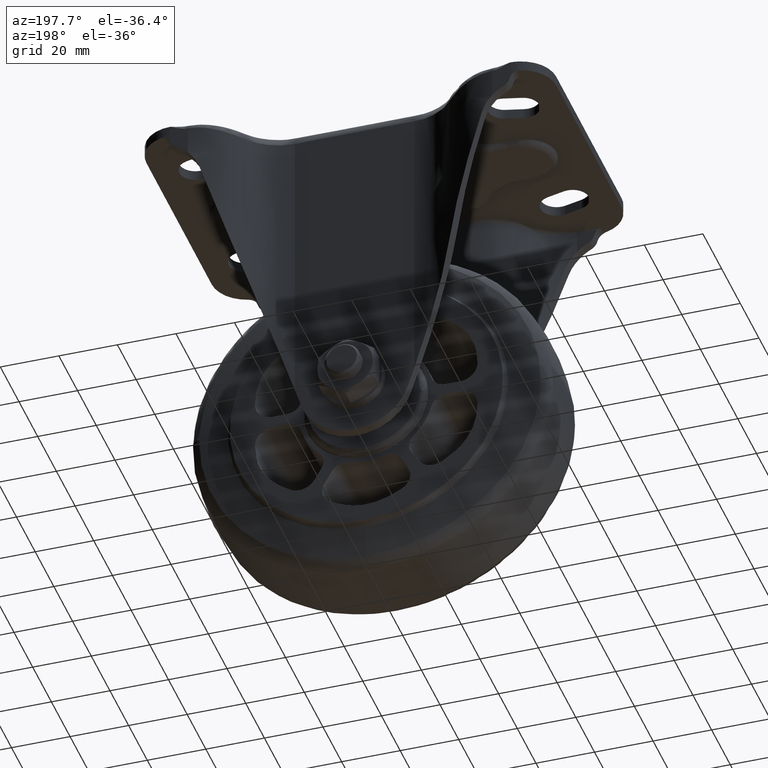
[diagram: clean part render]
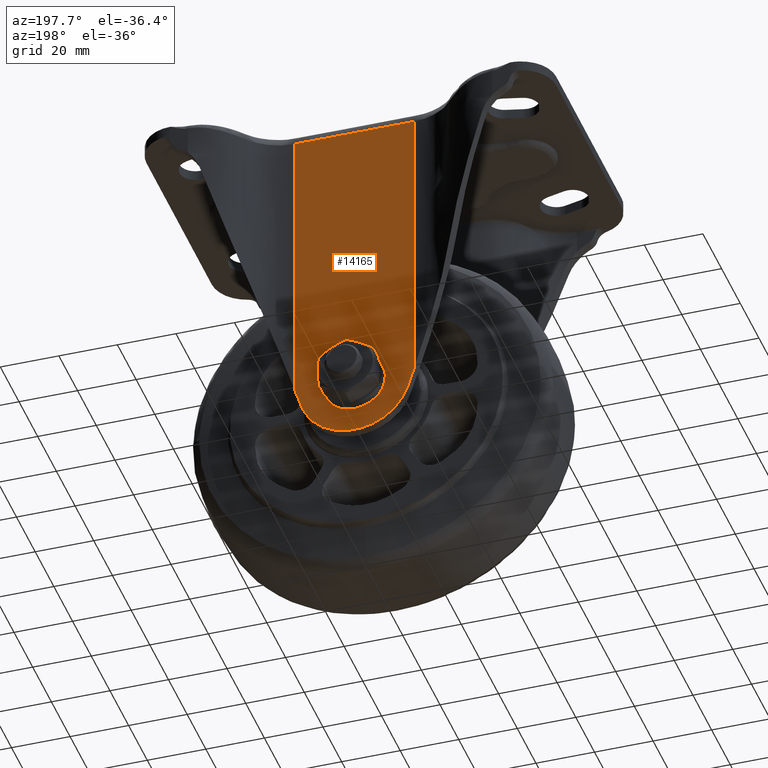
[diagram: same view with one face highlighted and labeled with its STEP entity id]
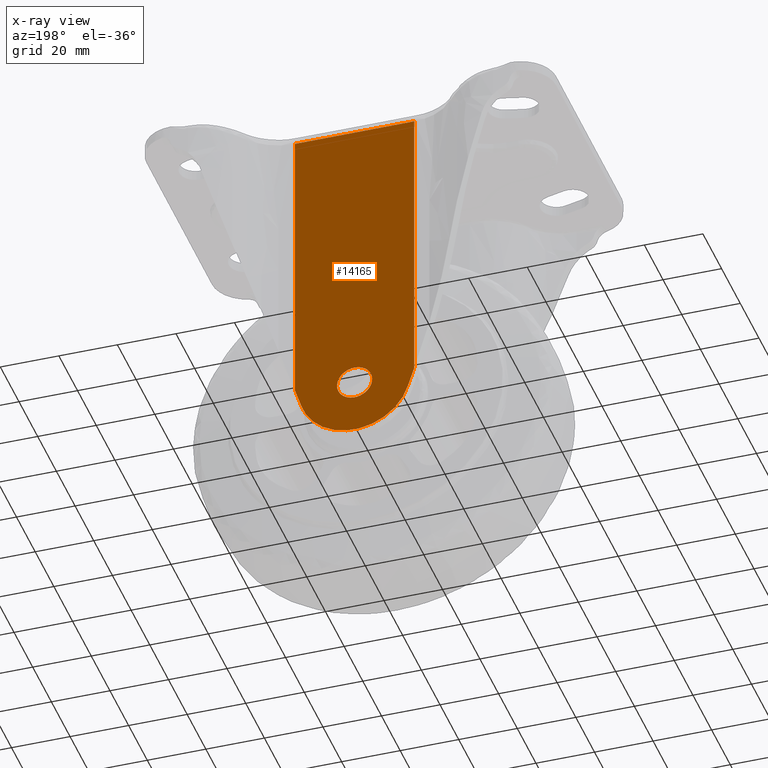
[diagram: x-ray of the same camera — body ghosted, the highlighted face saturated]
A machine part, auxiliary view. The second image highlights one B-rep face of the part: STEP entity #14165.
The next image is the same camera in x-ray: the body ghosted, the highlighted face saturated — about 0% of this face is hidden behind the body in this view.
In plain terms, the highlighted face is a freeform B-spline surface patch.
Its self-contained STEP definition (entity closure, byte-faithful):
#7421=CARTESIAN_POINT('',(5.999771538378207,31.500000000000000,0.052359213773397));
#7422=VERTEX_POINT('',#7421);
#7428=CARTESIAN_POINT('',(1.421085E-014,31.500000000000000,-6.0));
#7429=VERTEX_POINT('',#7428);
#7430=CARTESIAN_POINT('',(1.421085E-014,31.500000000000000,-6.0));
#7431=CARTESIAN_POINT('',(6.000000000000014,31.500000000000000,-6.0));
#7432=CARTESIAN_POINT('',(6.000000000000014,31.500000000000000,0.0));
#7433=CARTESIAN_POINT('',(6.000000000000015,31.500000000000007,0.026180105707424));
#7434=CARTESIAN_POINT('',(5.999771538378207,31.499999999999996,0.052359213773397));
#7442=(BOUNDED_CURVE()B_SPLINE_CURVE(2,(#7430,#7431,#7432,#7433,#7434),.UNSPECIFIED.,.F.,.U.)B_SPLINE_CURVE_WITH_KNOTS((3,2,3),(0.500000000000000,0.750000000000000,0.751539894380972),.UNSPECIFIED.)CURVE()GEOMETRIC_REPRESENTATION_ITEM()RATIONAL_B_SPLINE_CURVE((1.0,0.707106781186548,1.0,0.998195901512497,0.996414027993984))REPRESENTATION_ITEM(''));
#7443=EDGE_CURVE('',#7429,#7422,#7442,.T.);
#7445=CARTESIAN_POINT('',(-5.953597269083722,31.500000000000000,-0.744768123350259));
#7446=VERTEX_POINT('',#7445);
#7447=CARTESIAN_POINT('',(-5.953597269083722,31.499999999999996,-0.744768123350259));
#7448=CARTESIAN_POINT('',(-5.296191402106525,31.500000000000007,-6.000000000000002));
#7449=CARTESIAN_POINT('',(1.421085E-014,31.500000000000000,-6.0));
#7457=(BOUNDED_CURVE()B_SPLINE_CURVE(2,(#7447,#7448,#7449),.UNSPECIFIED.,.F.,.U.)B_SPLINE_CURVE_WITH_KNOTS((3,3),(0.271473935251942,0.500000000000000),.UNSPECIFIED.)CURVE()GEOMETRIC_REPRESENTATION_ITEM()RATIONAL_B_SPLINE_CURVE((0.954005418085258,0.732265061252680,1.0))REPRESENTATION_ITEM(''));
#7458=EDGE_CURVE('',#7446,#7429,#7457,.T.);
#7508=CARTESIAN_POINT('',(1.421085E-014,31.500000000000000,6.0));
#7509=VERTEX_POINT('',#7508);
#7510=CARTESIAN_POINT('',(1.421085E-014,31.500000000000000,6.0));
#7511=CARTESIAN_POINT('',(-5.999999999999985,31.500000000000000,6.0));
#7512=CARTESIAN_POINT('',(-5.999999999999987,31.500000000000000,0.0));
#7513=CARTESIAN_POINT('',(-5.999999999999987,31.500000000000000,-0.373829677370134));
#7514=CARTESIAN_POINT('',(-5.953597269083722,31.499999999999996,-0.744768123350259));
#7522=(BOUNDED_CURVE()B_SPLINE_CURVE(2,(#7510,#7511,#7512,#7513,#7514),.UNSPECIFIED.,.F.,.U.)B_SPLINE_CURVE_WITH_KNOTS((3,2,3),(0.0,0.250000000000000,0.271473935251942),.UNSPECIFIED.)CURVE()GEOMETRIC_REPRESENTATION_ITEM()RATIONAL_B_SPLINE_CURVE((1.0,0.707106781186548,1.0,0.974841719933868,0.954005418085258))REPRESENTATION_ITEM(''));
#7523=EDGE_CURVE('',#7509,#7446,#7522,.T.);
#7525=CARTESIAN_POINT('',(5.999771538378207,31.500000000000004,0.052359213773397));
#7526=CARTESIAN_POINT('',(5.947867262017067,31.500000000000004,6.000000000000001));
#7527=CARTESIAN_POINT('',(1.421085E-014,31.500000000000000,6.0));
#7535=(BOUNDED_CURVE()B_SPLINE_CURVE(2,(#7525,#7526,#7527),.UNSPECIFIED.,.F.,.U.)B_SPLINE_CURVE_WITH_KNOTS((3,3),(0.751539894380971,1.0),.UNSPECIFIED.)CURVE()GEOMETRIC_REPRESENTATION_ITEM()RATIONAL_B_SPLINE_CURVE((0.996414027993986,0.708910879674049,1.0))REPRESENTATION_ITEM(''));
#7536=EDGE_CURVE('',#7422,#7509,#7535,.T.);
#10448=CARTESIAN_POINT('',(20.381172492475351,31.500000000000000,101.0));
#10449=VERTEX_POINT('',#10448);
#10514=CARTESIAN_POINT('',(-20.381172492475201,31.500000000000000,101.0));
#10515=VERTEX_POINT('',#10514);
#10539=CARTESIAN_POINT('',(-20.381172492475201,31.500000000000000,101.0));
#10540=CARTESIAN_POINT('',(-6.793724164158340,31.500000000000000,101.0));
#10541=CARTESIAN_POINT('',(6.793724164158500,31.500000000000000,101.0));
#10542=CARTESIAN_POINT('',(20.381172492475351,31.500000000000000,101.0));
#10543=QUASI_UNIFORM_CURVE('',3,(#10539,#10540,#10541,#10542),.UNSPECIFIED.,.F.,.U.);
#10544=EDGE_CURVE('',#10515,#10449,#10543,.T.);
#13154=CARTESIAN_POINT('',(-18.235149932094149,31.500000000000000,-5.336600692767211));
#13155=VERTEX_POINT('',#13154);
#13156=CARTESIAN_POINT('',(18.235148162409502,31.500000000000000,-5.336606739771921));
#13157=VERTEX_POINT('',#13156);
#13158=CARTESIAN_POINT('',(-18.235149932094181,31.500000000000000,-5.336600692767220));
#13159=CARTESIAN_POINT('',(-14.236493826549678,31.500000000000000,-18.999997639500087));
#13160=CARTESIAN_POINT('',(-0.000003150319382,31.500000000000000,-18.999999999999741));
#13161=CARTESIAN_POINT('',(14.236487525910904,31.500000000000000,-19.000002360499391));
#13162=CARTESIAN_POINT('',(18.235148162409502,31.500000000000000,-5.336606739771921));
#13170=(BOUNDED_CURVE()B_SPLINE_CURVE(2,(#13158,#13159,#13160,#13161,#13162),.UNSPECIFIED.,.F.,.U.)B_SPLINE_CURVE_WITH_KNOTS((3,2,3),(0.0,0.500000000000000,1.0),.UNSPECIFIED.)CURVE()GEOMETRIC_REPRESENTATION_ITEM()RATIONAL_B_SPLINE_CURVE((1.0,0.800273040844081,1.0,0.800273040844081,1.0))REPRESENTATION_ITEM(''));
#13171=EDGE_CURVE('',#13155,#13157,#13170,.T.);
#13212=CARTESIAN_POINT('',(-20.381172492475201,31.500000000000000,1.315067284115456));
#13213=VERTEX_POINT('',#13212);
#13227=CARTESIAN_POINT('',(-18.235149932094149,31.500000000000000,-5.336600692767211));
#13228=CARTESIAN_POINT('',(-20.381172492475201,31.500000000000000,1.315067284115456));
#13229=QUASI_UNIFORM_CURVE('',1,(#13227,#13228),.UNSPECIFIED.,.F.,.U.);
#13230=EDGE_CURVE('',#13155,#13213,#13229,.T.);
#13290=CARTESIAN_POINT('',(20.381172492475351,31.500000000000000,1.315066247322582));
#13291=VERTEX_POINT('',#13290);
#13365=CARTESIAN_POINT('',(20.381172492475351,31.500000000000000,1.315066247322582));
#13366=CARTESIAN_POINT('',(18.235148162409502,31.500000000000000,-5.336606739771921));
#13367=QUASI_UNIFORM_CURVE('',1,(#13365,#13366),.UNSPECIFIED.,.F.,.U.);
#13368=EDGE_CURVE('',#13291,#13157,#13367,.T.);
#14131=CARTESIAN_POINT('',(20.381172492475351,31.500000000000000,1.315066247322582));
#14132=CARTESIAN_POINT('',(20.381172492475351,31.500000000000000,101.0));
#14133=QUASI_UNIFORM_CURVE('',1,(#14131,#14132),.UNSPECIFIED.,.F.,.U.);
#14134=EDGE_CURVE('',#13291,#10449,#14133,.T.);
#14142=CARTESIAN_POINT('',(-22.417251162820410,31.500000000000000,106.993999767416700));
#14143=CARTESIAN_POINT('',(-22.417251162820410,31.500000000000000,-24.994002986067471));
#14144=CARTESIAN_POINT('',(22.417252620595619,31.500000000000000,106.993999767416700));
#14145=CARTESIAN_POINT('',(22.417252620595619,31.500000000000000,-24.994002986067471));
#14146=B_SPLINE_SURFACE_WITH_KNOTS('',1,1,((#14142,#14144),(#14143,#14145)),.UNSPECIFIED.,.F.,.F.,.U.,(2,2),(2,2),(0.0,131.988002753484210),(0.0,44.834503783416032),.UNSPECIFIED.);
#14147=CARTESIAN_POINT('',(-20.381172492475201,31.500000000000000,1.315067284115456));
#14148=CARTESIAN_POINT('',(-20.381172492475201,31.500000000000000,101.0));
#14149=QUASI_UNIFORM_CURVE('',1,(#14147,#14148),.UNSPECIFIED.,.F.,.U.);
#14150=EDGE_CURVE('',#13213,#10515,#14149,.T.);
#14151=ORIENTED_EDGE('',*,*,#14150,.T.);
#14152=ORIENTED_EDGE('',*,*,#10544,.T.);
#14153=ORIENTED_EDGE('',*,*,#14134,.F.);
#14154=ORIENTED_EDGE('',*,*,#13368,.T.);
#14155=ORIENTED_EDGE('',*,*,#13171,.F.);
#14156=ORIENTED_EDGE('',*,*,#13230,.T.);
#14157=EDGE_LOOP('',(#14151,#14152,#14153,#14154,#14155,#14156));
#14158=FACE_OUTER_BOUND('',#14157,.T.);
#14159=ORIENTED_EDGE('',*,*,#7443,.T.);
#14160=ORIENTED_EDGE('',*,*,#7536,.T.);
#14161=ORIENTED_EDGE('',*,*,#7523,.T.);
#14162=ORIENTED_EDGE('',*,*,#7458,.T.);
#14163=EDGE_LOOP('',(#14159,#14160,#14161,#14162));
#14164=FACE_BOUND('',#14163,.T.);
#14165=ADVANCED_FACE('',(#14158,#14164),#14146,.F.);